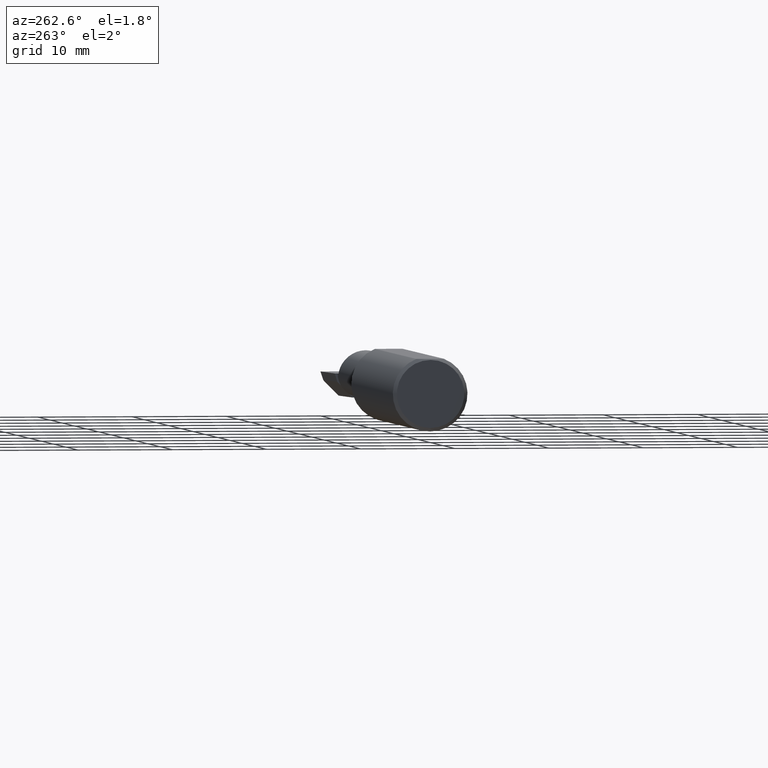
[diagram: clean part render]
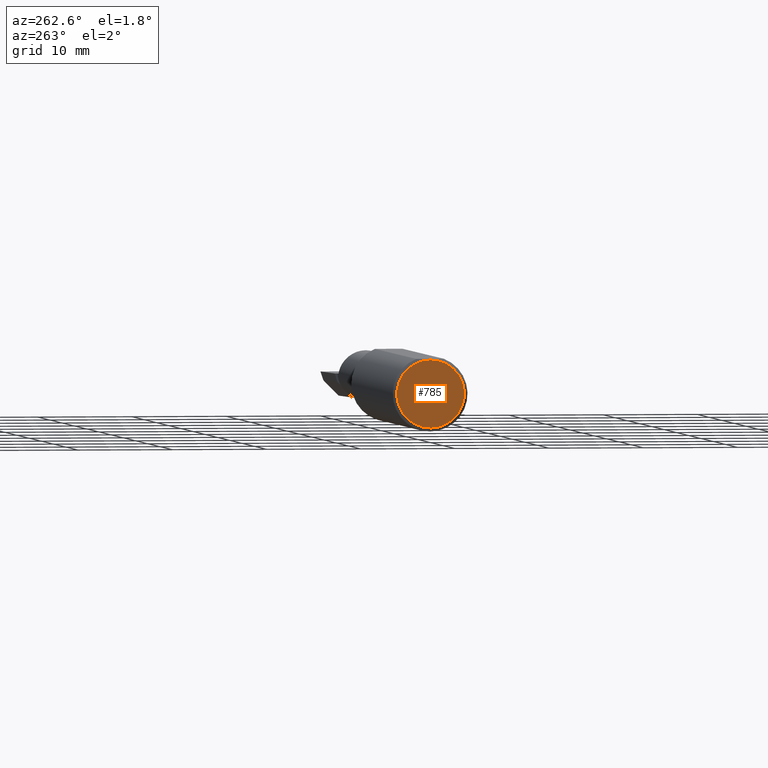
[diagram: same view with one face highlighted and labeled with its STEP entity id]
A machine part, auxiliary view. The second image highlights one B-rep face of the part: STEP entity #785.
In plain terms, the highlighted planar face has unit normal (1, 0, 0).
Its self-contained STEP definition (entity closure, byte-faithful):
#18 = DIRECTION ( 'NONE',  ( -1.000000000000000000, -0.000000000000000000, -0.000000000000000000 ) ) ;
#30 = DIRECTION ( 'NONE',  ( 1.000000000000000000, 0.000000000000000000, 0.000000000000000000 ) ) ;
#42 = AXIS2_PLACEMENT_3D ( 'NONE', #456, #30, #341 ) ;
#72 = EDGE_CURVE ( 'NONE', #384, #708, #250, .T. ) ;
#87 = FACE_OUTER_BOUND ( 'NONE', #346, .T. ) ;
#115 = ORIENTED_EDGE ( 'NONE', *, *, #72, .T. ) ;
#120 = DIRECTION ( 'NONE',  ( 0.000000000000000000, 0.000000000000000000, 1.000000000000000000 ) ) ;
#130 = AXIS2_PLACEMENT_3D ( 'NONE', #580, #18, #507 ) ;
#165 = CARTESIAN_POINT ( 'NONE',  ( 0.000000000000000000, 0.000000000000000000, -0.1410999999999996146 ) ) ;
#178 = EDGE_CURVE ( 'NONE', #708, #384, #278, .T. ) ;
#215 = PLANE ( 'NONE',  #42 ) ;
#250 = CIRCLE ( 'NONE', #712, 0.1410999999999996146 ) ;
#278 = CIRCLE ( 'NONE', #130, 0.1410999999999996146 ) ;
#284 = CARTESIAN_POINT ( 'NONE',  ( 0.000000000000000000, 1.819825143532964315E-17, 0.1410999999999996146 ) ) ;
#341 = DIRECTION ( 'NONE',  ( 0.000000000000000000, 0.000000000000000000, -1.000000000000000000 ) ) ;
#346 = EDGE_LOOP ( 'NONE', ( #351, #115 ) ) ;
#351 = ORIENTED_EDGE ( 'NONE', *, *, #178, .T. ) ;
#369 = DIRECTION ( 'NONE',  ( -1.000000000000000000, -0.000000000000000000, -0.000000000000000000 ) ) ;
#384 = VERTEX_POINT ( 'NONE', #284 ) ;
#456 = CARTESIAN_POINT ( 'NONE',  ( 0.000000000000000000, 0.000000000000000000, 0.000000000000000000 ) ) ;
#507 = DIRECTION ( 'NONE',  ( 0.000000000000000000, 0.000000000000000000, 1.000000000000000000 ) ) ;
#580 = CARTESIAN_POINT ( 'NONE',  ( 0.000000000000000000, 0.000000000000000000, 0.000000000000000000 ) ) ;
#674 = CARTESIAN_POINT ( 'NONE',  ( 0.000000000000000000, 0.000000000000000000, 0.000000000000000000 ) ) ;
#708 = VERTEX_POINT ( 'NONE', #165 ) ;
#712 = AXIS2_PLACEMENT_3D ( 'NONE', #674, #369, #120 ) ;
#785 = ADVANCED_FACE ( 'NONE', ( #87 ), #215, .F. ) ;